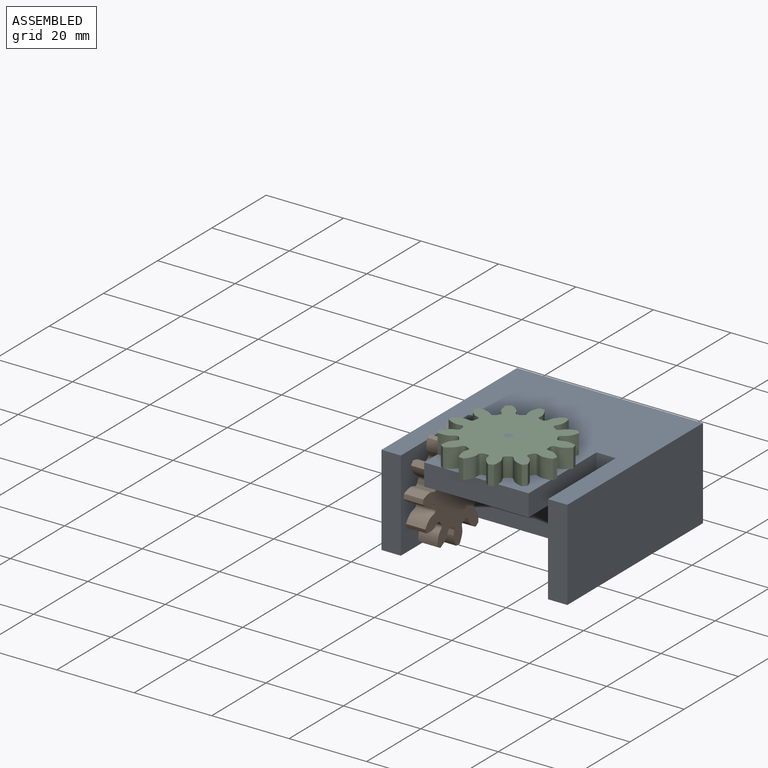
[diagram: assembled view]
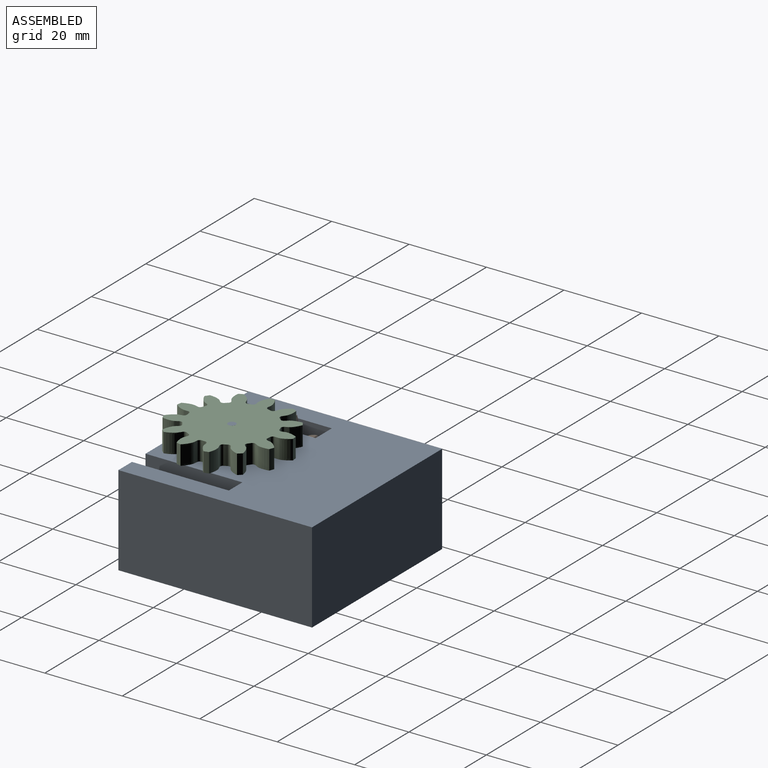
[diagram: assembled view, second angle]
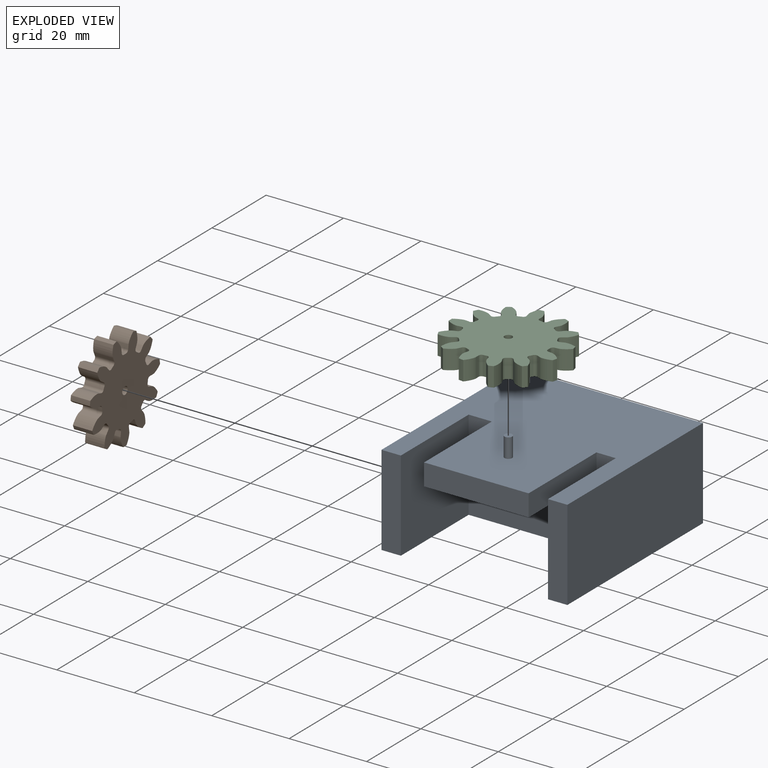
[diagram: exploded view]
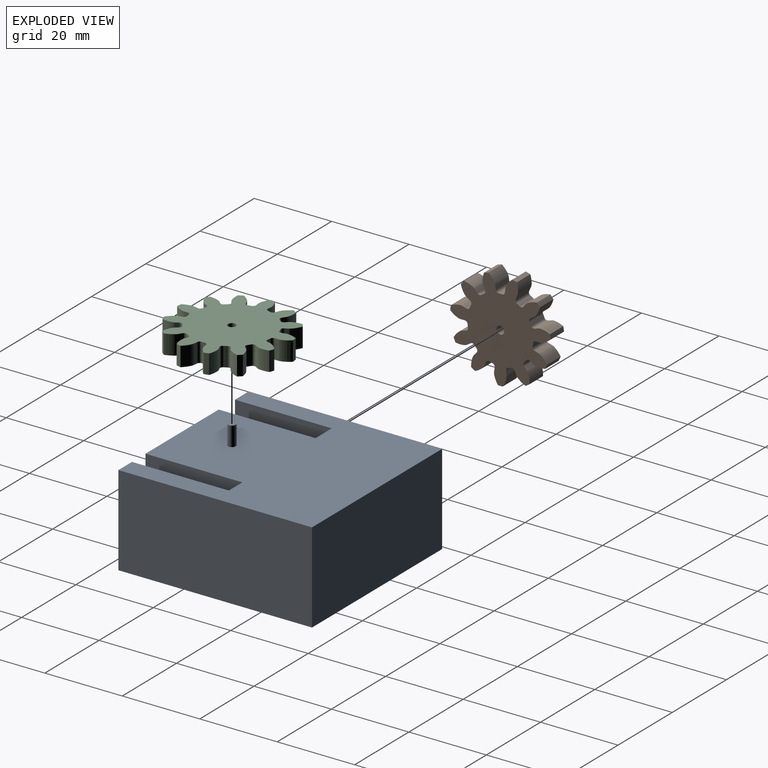
[diagram: exploded view, second angle]
ASSEMBLY  parts=3 mates=2
PART A: 18 faces, bbox 48x50x28.4 mm
  f0: plane 50x23.38mm, normal (-1,0,0), area 1169mm2, adj f1,f3,f4,f17
  f1: plane 50x48mm, normal (0,0,-1), area 1450mm2, adj f0,f2,f3,f7,f8,f9,f10,f17
  f2: plane 25x23.38mm, normal (1,0,0), area 581.4mm2, adj f1,f3,f4,f5,f7
  f3: plane 23.38x5mm, normal (0,-1,0), area 116.9mm2, adj f0,f1,f2,f4
  f4: plane 50x48mm, normal (0,0,1), area 2121.9mm2, adj f0,f2,f3,f7,f8,f9,f10,f12
  f5: cylinder r=1mm len=6mm, axis (-1,0,0), area 37.7mm2, adj f2,f6
  f6: plane 2x2mm, normal (1,0,0), area 3.1mm2, adj f5
  f7: plane 38x23.38mm, normal (0,-1,0), area 737mm2, adj f1,f2,f4,f8,f11,f15,f16
  f8: plane 25x23.38mm, normal (-1,0,0), area 584.5mm2, adj f1,f4,f7,f10
  f9: plane 50x23.38mm, normal (1,0,0), area 1169mm2, adj f1,f4,f10,f17
  f10: plane 23.38x5mm, normal (0,-1,0), area 116.9mm2, adj f1,f4,f8,f9
  f11: plane 27x25mm, normal (0,0,-1), area 675mm2, adj f7,f12,f15,f16
  f12: plane 27x5.61mm, normal (0,-1,0), area 151.4mm2, adj f4,f11,f15,f16
  f13: cylinder r=1mm len=5mm, axis (0,0,-1), area 31.4mm2, adj f4,f14
  f14: plane 2x2mm, normal (0,0,1), area 3.1mm2, adj f13
  f15: plane 25x5.61mm, normal (1,0,0), area 140.2mm2, adj f4,f7,f11,f12
  f16: plane 25x5.61mm, normal (-1,0,0), area 140.2mm2, adj f4,f7,f11,f12
  f17: plane 48x23.38mm, normal (0,1,0), area 1122.2mm2, adj f0,f1,f4,f9
PART B: 69 faces, bbox 25.7x5x26 mm
  f0: extruded ~5x3.51mm, area 20.6mm2, adj f43,f44,f45,f46
  f1: cylinder r=8.5mm len=5mm, axis (0,1,0), area 4.2mm2, adj f44,f45,f46,f47
  f2: extruded ~5x3.51mm, area 20.6mm2, adj f3,f44,f45,f47
  f3: cylinder r=13mm len=5mm, axis (0,1,0), area 6mm2, adj f2,f4,f44,f45
  f4: extruded ~5x3.98mm, area 20.6mm2, adj f3,f44,f45,f48
  f5: cylinder r=8.5mm len=5mm, axis (0,1,0), area 4.2mm2, adj f44,f45,f48,f49
  f6: extruded ~5x3.5mm, area 20.6mm2, adj f7,f44,f45,f49
  f7: cylinder r=13mm len=5mm, axis (0,1,0), area 6mm2, adj f6,f8,f44,f45
  f8: extruded ~5x3.19mm, area 20.6mm2, adj f7,f44,f45,f50
  f9: cylinder r=8.5mm len=5mm, axis (0,1,0), area 4.2mm2, adj f44,f45,f50,f51
  f10: extruded ~5x3.98mm, area 20.6mm2, adj f11,f44,f45,f51
  f11: cylinder r=13mm len=5mm, axis (0,1,0), area 6mm2, adj f10,f12,f44,f45
  f12: extruded ~5x3.75mm, area 20.6mm2, adj f11,f44,f45,f52
  f13: cylinder r=8.5mm len=5mm, axis (0,1,0), area 4.2mm2, adj f44,f45,f52,f53
  f14: extruded ~5x3.2mm, area 20.6mm2, adj f15,f44,f45,f53
  f15: cylinder r=13mm len=5mm, axis (0,1,0), area 6mm2, adj f14,f16,f44,f45
  f16: extruded ~5x3.9mm, area 20.6mm2, adj f15,f44,f45,f54
  f17: cylinder r=8.5mm len=5mm, axis (0,1,0), area 4.2mm2, adj f44,f45,f54,f55
  f18: extruded ~5x3.74mm, area 20.6mm2, adj f19,f44,f45,f55
  f19: cylinder r=13mm len=5mm, axis (0,1,0), area 6mm2, adj f18,f20,f44,f45
  f20: extruded ~5x2.83mm, area 20.6mm2, adj f19,f44,f45,f56
  f21: cylinder r=8.5mm len=5mm, axis (0,1,0), area 4.2mm2, adj f44,f45,f56,f57
  f22: extruded ~5x3.9mm, area 20.6mm2, adj f23,f44,f45,f57
  f23: cylinder r=13mm len=5mm, axis (0,1,0), area 6mm2, adj f22,f24,f44,f45
  f24: extruded ~5x3.9mm, area 20.6mm2, adj f23,f44,f45,f58
  f25: cylinder r=8.5mm len=5mm, axis (0,1,0), area 4.2mm2, adj f44,f45,f58,f59
  f26: extruded ~5x2.83mm, area 20.6mm2, adj f27,f44,f45,f59
  f27: cylinder r=13mm len=5mm, axis (0,1,0), area 6mm2, adj f26,f28,f44,f45
  f28: extruded ~5x3.74mm, area 20.6mm2, adj f27,f44,f45,f60
  f29: cylinder r=8.5mm len=5mm, axis (0,1,0), area 4.2mm2, adj f44,f45,f60,f61
  f30: extruded ~5x3.9mm, area 20.6mm2, adj f31,f44,f45,f61
  f31: cylinder r=13mm len=5mm, axis (0,1,0), area 6mm2, adj f30,f32,f44,f45
  f32: extruded ~5x3.2mm, area 20.6mm2, adj f31,f44,f45,f62
  f33: cylinder r=8.5mm len=5mm, axis (0,1,0), area 4.2mm2, adj f44,f45,f62,f63
  f34: extruded ~5x3.75mm, area 20.6mm2, adj f35,f44,f45,f63
  f35: cylinder r=13mm len=5mm, axis (0,1,0), area 6mm2, adj f34,f36,f44,f45
  f36: extruded ~5x3.98mm, area 20.6mm2, adj f35,f44,f45,f64
  f37: cylinder r=8.5mm len=5mm, axis (0,1,0), area 4.2mm2, adj f44,f45,f64,f65
  f38: extruded ~5x3.19mm, area 20.6mm2, adj f39,f44,f45,f65
  f39: cylinder r=13mm len=5mm, axis (0,1,0), area 6mm2, adj f38,f40,f44,f45
  f40: extruded ~5x3.5mm, area 20.6mm2, adj f39,f44,f45,f66
  f41: cylinder r=8.5mm len=5mm, axis (0,1,0), area 4.2mm2, adj f44,f45,f66,f67
  f42: extruded ~5x3.98mm, area 20.6mm2, adj f43,f44,f45,f67
  f43: cylinder r=13mm len=5mm, axis (0,1,0), area 6mm2, adj f0,f42,f44,f45
  f44: plane 25.96x25.7mm, normal (0,-1,0), area 361.2mm2, adj f0,f1,f2,f3,f4,f5,f6,f7
  f45: plane 25.96x25.7mm, normal (0,1,0), area 361.2mm2, adj f0,f1,f2,f3,f4,f5,f6,f7
  f46: cylinder r=0.72mm len=5mm, axis (0,1,0), area 5.4mm2, adj f0,f1,f44,f45
  f47: cylinder r=0.72mm len=5mm, axis (0,1,0), area 5.4mm2, adj f1,f2,f44,f45
  f48: cylinder r=0.72mm len=5mm, axis (0,1,0), area 5.4mm2, adj f4,f5,f44,f45
  f49: cylinder r=0.72mm len=5mm, axis (0,1,0), area 5.4mm2, adj f5,f6,f44,f45
  f50: cylinder r=0.72mm len=5mm, axis (0,1,0), area 5.4mm2, adj f8,f9,f44,f45
  f51: cylinder r=0.72mm len=5mm, axis (0,1,0), area 5.4mm2, adj f9,f10,f44,f45
  f52: cylinder r=0.72mm len=5mm, axis (0,1,0), area 5.4mm2, adj f12,f13,f44,f45
  f53: cylinder r=0.72mm len=5mm, axis (0,1,0), area 5.4mm2, adj f13,f14,f44,f45
  f54: cylinder r=0.72mm len=5mm, axis (0,1,0), area 5.4mm2, adj f16,f17,f44,f45
  f55: cylinder r=0.72mm len=5mm, axis (0,1,0), area 5.4mm2, adj f17,f18,f44,f45
  f56: cylinder r=0.72mm len=5mm, axis (0,1,0), area 5.4mm2, adj f20,f21,f44,f45
  f57: cylinder r=0.72mm len=5mm, axis (0,1,0), area 5.4mm2, adj f21,f22,f44,f45
  f58: cylinder r=0.72mm len=5mm, axis (0,1,0), area 5.4mm2, adj f24,f25,f44,f45
  f59: cylinder r=0.72mm len=5mm, axis (0,1,0), area 5.4mm2, adj f25,f26,f44,f45
  f60: cylinder r=0.72mm len=5mm, axis (0,1,0), area 5.4mm2, adj f28,f29,f44,f45
  f61: cylinder r=0.72mm len=5mm, axis (0,1,0), area 5.4mm2, adj f29,f30,f44,f45
  f62: cylinder r=0.72mm len=5mm, axis (0,1,0), area 5.4mm2, adj f32,f33,f44,f45
  f63: cylinder r=0.72mm len=5mm, axis (0,1,0), area 5.4mm2, adj f33,f34,f44,f45
  f64: cylinder r=0.72mm len=5mm, axis (0,1,0), area 5.4mm2, adj f36,f37,f44,f45
  f65: cylinder r=0.72mm len=5mm, axis (0,1,0), area 5.4mm2, adj f37,f38,f44,f45
  f66: cylinder r=0.72mm len=5mm, axis (0,1,0), area 5.4mm2, adj f40,f41,f44,f45
  f67: cylinder r=0.72mm len=5mm, axis (0,1,0), area 5.4mm2, adj f41,f42,f44,f45
  f68: cylinder r=1mm len=5mm, axis (0,1,0), area 31.4mm2, adj f44,f45
PART C: 81 faces, bbox 29.8x5x30 mm
  f0: extruded ~5x3.55mm, area 20.4mm2, adj f51,f52,f53,f54
  f1: cylinder r=10.5mm len=5mm, axis (0,1,0), area 4.2mm2, adj f52,f53,f54,f55
  f2: extruded ~5x3.55mm, area 20.4mm2, adj f3,f52,f53,f55
  f3: cylinder r=15mm len=5mm, axis (0,1,0), area 6.3mm2, adj f2,f4,f52,f53
  f4: extruded ~5x3.97mm, area 20.4mm2, adj f3,f52,f53,f56
  f5: cylinder r=10.5mm len=5mm, axis (0,1,0), area 4.2mm2, adj f52,f53,f56,f57
  f6: extruded ~5x3.23mm, area 20.4mm2, adj f7,f52,f53,f57
  f7: cylinder r=15mm len=5mm, axis (0,1,0), area 6.3mm2, adj f6,f8,f52,f53
  f8: extruded ~5x3.49mm, area 20.4mm2, adj f7,f52,f53,f58
  f9: cylinder r=10.5mm len=5mm, axis (0,1,0), area 4.2mm2, adj f52,f53,f58,f59
  f10: extruded ~5x3.94mm, area 20.4mm2, adj f11,f52,f53,f59
  f11: cylinder r=15mm len=5mm, axis (0,1,0), area 6.3mm2, adj f10,f12,f52,f53
  f12: extruded ~5x3.31mm, area 20.4mm2, adj f11,f52,f53,f60
  f13: cylinder r=10.5mm len=5mm, axis (0,1,0), area 4.2mm2, adj f52,f53,f60,f61
  f14: extruded ~5x3.74mm, area 20.4mm2, adj f15,f52,f53,f61
  f15: cylinder r=15mm len=5mm, axis (0,1,0), area 6.3mm2, adj f14,f16,f52,f53
  f16: extruded ~5x3.95mm, area 20.4mm2, adj f15,f52,f53,f62
  f17: cylinder r=10.5mm len=5mm, axis (0,1,0), area 4.2mm2, adj f52,f53,f62,f63
  f18: extruded ~5x2.93mm, area 20.4mm2, adj f19,f52,f53,f63
  f19: cylinder r=15mm len=5mm, axis (0,1,0), area 6.3mm2, adj f18,f20,f52,f53
  f20: extruded ~5x3.69mm, area 20.4mm2, adj f19,f52,f53,f64
  f21: cylinder r=10.5mm len=5mm, axis (0,1,0), area 4.2mm2, adj f52,f53,f64,f65
  f22: extruded ~5x3.84mm, area 20.4mm2, adj f23,f52,f53,f65
  f23: cylinder r=15mm len=5mm, axis (0,1,0), area 6.3mm2, adj f22,f24,f52,f53
  f24: extruded ~5x3.02mm, area 20.4mm2, adj f23,f52,f53,f66
  f25: cylinder r=10.5mm len=5mm, axis (0,1,0), area 4.2mm2, adj f52,f53,f66,f67
  f26: extruded ~5x3.87mm, area 20.4mm2, adj f27,f52,f53,f67
  f27: cylinder r=15mm len=5mm, axis (0,1,0), area 6.3mm2, adj f26,f28,f52,f53
  f28: extruded ~5x3.87mm, area 20.4mm2, adj f27,f52,f53,f68
  f29: cylinder r=10.5mm len=5mm, axis (0,1,0), area 4.2mm2, adj f52,f53,f68,f69
  f30: extruded ~5x3.02mm, area 20.4mm2, adj f31,f52,f53,f69
  f31: cylinder r=15mm len=5mm, axis (0,1,0), area 6.3mm2, adj f30,f32,f52,f53
  f32: extruded ~5x3.84mm, area 20.4mm2, adj f31,f52,f53,f70
  f33: cylinder r=10.5mm len=5mm, axis (0,1,0), area 4.2mm2, adj f52,f53,f70,f71
  f34: extruded ~5x3.69mm, area 20.4mm2, adj f35,f52,f53,f71
  f35: cylinder r=15mm len=5mm, axis (0,1,0), area 6.3mm2, adj f34,f36,f52,f53
  f36: extruded ~5x2.93mm, area 20.4mm2, adj f35,f52,f53,f72
  f37: cylinder r=10.5mm len=5mm, axis (0,1,0), area 4.2mm2, adj f52,f53,f72,f73
  f38: extruded ~5x3.95mm, area 20.4mm2, adj f39,f52,f53,f73
  f39: cylinder r=15mm len=5mm, axis (0,1,0), area 6.3mm2, adj f38,f40,f52,f53
  f40: extruded ~5x3.74mm, area 20.4mm2, adj f39,f52,f53,f74
  f41: cylinder r=10.5mm len=5mm, axis (0,1,0), area 4.2mm2, adj f52,f53,f74,f75
  f42: extruded ~5x3.31mm, area 20.4mm2, adj f43,f52,f53,f75
  f43: cylinder r=15mm len=5mm, axis (0,1,0), area 6.3mm2, adj f42,f44,f52,f53
  f44: extruded ~5x3.94mm, area 20.4mm2, adj f43,f52,f53,f76
  f45: cylinder r=10.5mm len=5mm, axis (0,1,0), area 4.2mm2, adj f52,f53,f76,f77
  f46: extruded ~5x3.49mm, area 20.4mm2, adj f47,f52,f53,f77
  f47: cylinder r=15mm len=5mm, axis (0,1,0), area 6.3mm2, adj f46,f48,f52,f53
  f48: extruded ~5x3.23mm, area 20.4mm2, adj f47,f52,f53,f78
  f49: cylinder r=10.5mm len=5mm, axis (0,1,0), area 4.2mm2, adj f52,f53,f78,f79
  f50: extruded ~5x3.97mm, area 20.4mm2, adj f51,f52,f53,f79
  f51: cylinder r=15mm len=5mm, axis (0,1,0), area 6.3mm2, adj f0,f50,f52,f53
  f52: plane 29.98x29.76mm, normal (0,-1,0), area 509.2mm2, adj f0,f1,f2,f3,f4,f5,f6,f7
  f53: plane 29.98x29.76mm, normal (0,1,0), area 509.2mm2, adj f0,f1,f2,f3,f4,f5,f6,f7
  f54: cylinder r=0.74mm len=5mm, axis (0,1,0), area 5.6mm2, adj f0,f1,f52,f53
  f55: cylinder r=0.74mm len=5mm, axis (0,1,0), area 5.6mm2, adj f1,f2,f52,f53
  f56: cylinder r=0.74mm len=5mm, axis (0,1,0), area 5.6mm2, adj f4,f5,f52,f53
  f57: cylinder r=0.74mm len=5mm, axis (0,1,0), area 5.6mm2, adj f5,f6,f52,f53
  f58: cylinder r=0.74mm len=5mm, axis (0,1,0), area 5.6mm2, adj f8,f9,f52,f53
  f59: cylinder r=0.74mm len=5mm, axis (0,1,0), area 5.6mm2, adj f9,f10,f52,f53
  f60: cylinder r=0.74mm len=5mm, axis (0,1,0), area 5.6mm2, adj f12,f13,f52,f53
  f61: cylinder r=0.74mm len=5mm, axis (0,1,0), area 5.6mm2, adj f13,f14,f52,f53
  f62: cylinder r=0.74mm len=5mm, axis (0,1,0), area 5.6mm2, adj f16,f17,f52,f53
  f63: cylinder r=0.74mm len=5mm, axis (0,1,0), area 5.6mm2, adj f17,f18,f52,f53
  f64: cylinder r=0.74mm len=5mm, axis (0,1,0), area 5.6mm2, adj f20,f21,f52,f53
  f65: cylinder r=0.74mm len=5mm, axis (0,1,0), area 5.6mm2, adj f21,f22,f52,f53
  f66: cylinder r=0.74mm len=5mm, axis (0,1,0), area 5.6mm2, adj f24,f25,f52,f53
  f67: cylinder r=0.74mm len=5mm, axis (0,1,0), area 5.6mm2, adj f25,f26,f52,f53
  f68: cylinder r=0.74mm len=5mm, axis (0,1,0), area 5.6mm2, adj f28,f29,f52,f53
  f69: cylinder r=0.74mm len=5mm, axis (0,1,0), area 5.6mm2, adj f29,f30,f52,f53
  f70: cylinder r=0.74mm len=5mm, axis (0,1,0), area 5.6mm2, adj f32,f33,f52,f53
  f71: cylinder r=0.74mm len=5mm, axis (0,1,0), area 5.6mm2, adj f33,f34,f52,f53
  f72: cylinder r=0.74mm len=5mm, axis (0,1,0), area 5.6mm2, adj f36,f37,f52,f53
  f73: cylinder r=0.74mm len=5mm, axis (0,1,0), area 5.6mm2, adj f37,f38,f52,f53
  f74: cylinder r=0.74mm len=5mm, axis (0,1,0), area 5.6mm2, adj f40,f41,f52,f53
  f75: cylinder r=0.74mm len=5mm, axis (0,1,0), area 5.6mm2, adj f41,f42,f52,f53
  f76: cylinder r=0.74mm len=5mm, axis (0,1,0), area 5.6mm2, adj f44,f45,f52,f53
  f77: cylinder r=0.74mm len=5mm, axis (0,1,0), area 5.6mm2, adj f45,f46,f52,f53
  f78: cylinder r=0.74mm len=5mm, axis (0,1,0), area 5.6mm2, adj f48,f49,f52,f53
  f79: cylinder r=0.74mm len=5mm, axis (0,1,0), area 5.6mm2, adj f49,f50,f52,f53
  f80: cylinder r=1mm len=5mm, axis (0,1,0), area 31.4mm2, adj f52,f53
PLACE A t=(-25.8,10.42,-20.59)mm fixed
PLACE B rot(axis=(0.58,-0.58,0.58),120deg) t=(-49.96,-2.08,3.59)mm
PLACE C rot(axis=(-1,0,0),90deg) t=(-31.96,-2.08,51.34)mm
MATE revolute C.f80 <-> A.f13  axis (0,0,1) through (-31.96,-2.08,56.34)mm
MATE revolute A.f5 <-> B.f1  axis (1,0,0) through (-44.96,-2.08,40.34)mm
